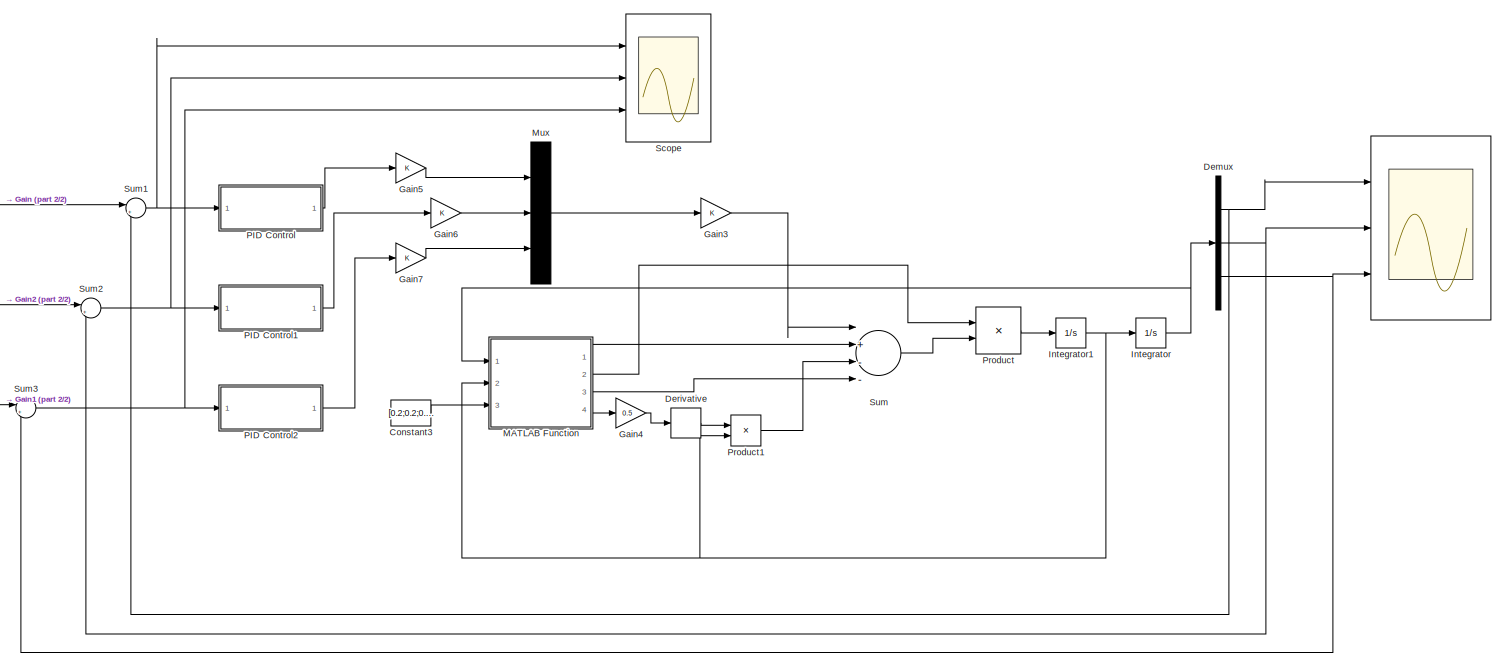
[diagram: root canvas - part 1/2, most of the canvas]
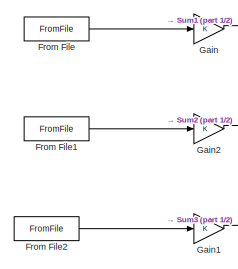
[diagram: root canvas - part 2/2, middle left region]
MODEL slx_bf147442f021
KIND model
CONFIG AbsTol = auto
CONFIG EnableMultiTasking = off
CONFIG FixedStep = auto
CONFIG MaxStep = auto
CONFIG MinStep = auto
CONFIG RelTol = 1e-3
CONFIG SampleTimeConstraint = Unconstrained
CONFIG Solver = VariableStepAuto
CONFIG SolverName = VariableStepAuto
CONFIG StartTime = 0.0
CONFIG StopTime = 40
BLOCK [Scope]  
  Floating = off
  NumInputPorts = 3
  Ports = [3]
  ScopeSpecificationString = Simulink.scopes.TimeScopeBlockCfg('CurrentConfiguration', extmgr.ConfigurationSet(extmgr.Configuration('Core','General UI',true),extmgr.Configuration('Core','Source UI',true),extmgr.Configuration('Sources','WiredSimulink',true,'DataLogging',true,'DataLoggingVariableName','Theta','DataLoggingSaveFormat','StructureWithTime'),extmgr.Configuration('Visuals','Time Domain',true,'SerializedDisplays',{str...<+2786ch>
BLOCK [Constant] Constant3
  Value = [0.2;0.2;0.2]*20
BLOCK [Demux] Demux
  DisplayOption = bar
  Outputs = 3
  Ports = [1, 3]
BLOCK [Derivative] Derivative
BLOCK [FromFile] From File
  FileName = The1Data1.mat
  SampleTime = 0
BLOCK [FromFile] From File1
  FileName = The2Data1.mat
  SampleTime = 0
BLOCK [FromFile] From File2
  FileName = The3Data1.mat
  SampleTime = 0
BLOCK [Gain] Gain
  OutDataTypeStr = Inherit: Inherit via internal rule
  ParamDataTypeStr = Inherit: Inherit via internal rule
  SaturateOnIntegerOverflow = off
BLOCK [Gain] Gain1
  OutDataTypeStr = Inherit: Inherit via internal rule
  ParamDataTypeStr = Inherit: Inherit via internal rule
  SaturateOnIntegerOverflow = off
BLOCK [Gain] Gain2
  OutDataTypeStr = Inherit: Inherit via internal rule
  ParamDataTypeStr = Inherit: Inherit via internal rule
  SaturateOnIntegerOverflow = off
BLOCK [Gain] Gain3
  OutDataTypeStr = Inherit: Inherit via internal rule
  ParamDataTypeStr = Inherit: Inherit via internal rule
  SaturateOnIntegerOverflow = off
BLOCK [Gain] Gain4
  Gain = 0.5
  OutDataTypeStr = Inherit: Inherit via internal rule
  ParamDataTypeStr = Inherit: Inherit via internal rule
  SaturateOnIntegerOverflow = off
BLOCK [Gain] Gain5
  OutDataTypeStr = Inherit: Inherit via internal rule
  ParamDataTypeStr = Inherit: Inherit via internal rule
  SaturateOnIntegerOverflow = off
BLOCK [Gain] Gain6
  OutDataTypeStr = Inherit: Inherit via internal rule
  ParamDataTypeStr = Inherit: Inherit via internal rule
  SaturateOnIntegerOverflow = off
BLOCK [Gain] Gain7
  OutDataTypeStr = Inherit: Inherit via internal rule
  ParamDataTypeStr = Inherit: Inherit via internal rule
  SaturateOnIntegerOverflow = off
BLOCK [Integrator] Integrator
  InitialCondition = [0;0;0]
  Ports = [1, 1]
BLOCK [Integrator] Integrator1
  InitialCondition = [0;0;0]
  Ports = [1, 1]
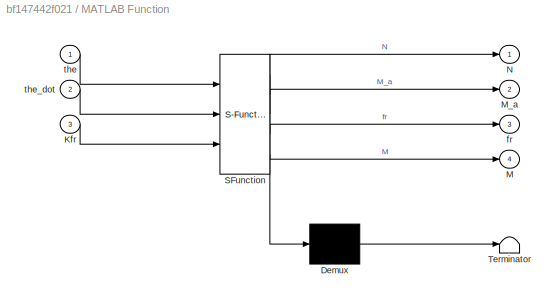
BLOCK [SubSystem] MATLAB Function
  ErrorFcn = Stateflow.Translate.translate
  PermitHierarchicalResolution = ExplicitOnly
  Ports = [3, 4]
  RequestExecContextInheritance = off
  SFBlockType = MATLAB Function
  TreatAsAtomicUnit = on
BLOCK [Demux] MATLAB Function/ Demux 
  Outputs = 1
  Ports = [1, 1]
BLOCK [S-Function] MATLAB Function/ SFunction 
  EnableBusSupport = on
  FunctionName = sf_sfun
  PortCounts = [3 5]
  Ports = [3, 5]
  SFcnIsStateOwnerBlock = off
  SFunctionDeploymentMode = off
  Tag = Stateflow S-Function DrwDynamics 2
BLOCK [Terminator] MATLAB Function/ Terminator 
BLOCK [Inport] MATLAB Function/Kfr
  IconDisplay = Port number
  Port = 3
BLOCK [Outport] MATLAB Function/M
  IconDisplay = Port number
  Port = 4
BLOCK [Outport] MATLAB Function/M_a
  IconDisplay = Port number
  Port = 2
BLOCK [Outport] MATLAB Function/N
  IconDisplay = Port number
BLOCK [Outport] MATLAB Function/fr
  IconDisplay = Port number
  Port = 3
BLOCK [Inport] MATLAB Function/the
  IconDisplay = Port number
BLOCK [Inport] MATLAB Function/the_dot
  IconDisplay = Port number
  Port = 2
BLOCK [Mux] Mux
  DisplayOption = bar
  Inputs = 3
  Ports = [3, 1]
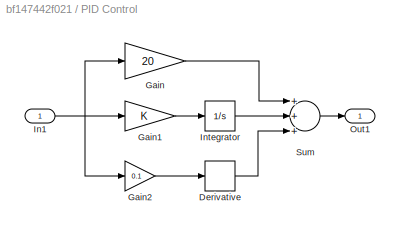
BLOCK [SubSystem] PID Control
  Ports = [1, 1]
  RequestExecContextInheritance = off
BLOCK [Derivative] PID Control/Derivative
BLOCK [Gain] PID Control/Gain
  Gain = 20
  OutDataTypeStr = Inherit: Inherit via internal rule
  ParamDataTypeStr = Inherit: Inherit via internal rule
  SaturateOnIntegerOverflow = off
BLOCK [Gain] PID Control/Gain1
  OutDataTypeStr = Inherit: Inherit via internal rule
  ParamDataTypeStr = Inherit: Inherit via internal rule
  SaturateOnIntegerOverflow = off
BLOCK [Gain] PID Control/Gain2
  Gain = 0.1
  OutDataTypeStr = Inherit: Inherit via internal rule
  ParamDataTypeStr = Inherit: Inherit via internal rule
  SaturateOnIntegerOverflow = off
BLOCK [Inport] PID Control/In1
  IconDisplay = Port number
BLOCK [Integrator] PID Control/Integrator
  Ports = [1, 1]
BLOCK [Outport] PID Control/Out1
  IconDisplay = Port number
BLOCK [Sum] PID Control/Sum
  InputSameDT = off
  Inputs = +++
  OutDataTypeStr = Inherit: Inherit via internal rule
  Ports = [3, 1]
  SaturateOnIntegerOverflow = off
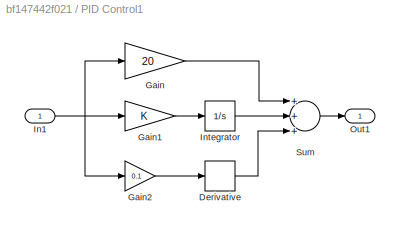
BLOCK [SubSystem] PID Control1
  Ports = [1, 1]
  RequestExecContextInheritance = off
BLOCK [Derivative] PID Control1/Derivative
BLOCK [Gain] PID Control1/Gain
  Gain = 20
  OutDataTypeStr = Inherit: Inherit via internal rule
  ParamDataTypeStr = Inherit: Inherit via internal rule
  SaturateOnIntegerOverflow = off
BLOCK [Gain] PID Control1/Gain1
  OutDataTypeStr = Inherit: Inherit via internal rule
  ParamDataTypeStr = Inherit: Inherit via internal rule
  SaturateOnIntegerOverflow = off
BLOCK [Gain] PID Control1/Gain2
  Gain = 0.1
  OutDataTypeStr = Inherit: Inherit via internal rule
  ParamDataTypeStr = Inherit: Inherit via internal rule
  SaturateOnIntegerOverflow = off
BLOCK [Inport] PID Control1/In1
  IconDisplay = Port number
BLOCK [Integrator] PID Control1/Integrator
  Ports = [1, 1]
BLOCK [Outport] PID Control1/Out1
  IconDisplay = Port number
BLOCK [Sum] PID Control1/Sum
  InputSameDT = off
  Inputs = +++
  OutDataTypeStr = Inherit: Inherit via internal rule
  Ports = [3, 1]
  SaturateOnIntegerOverflow = off
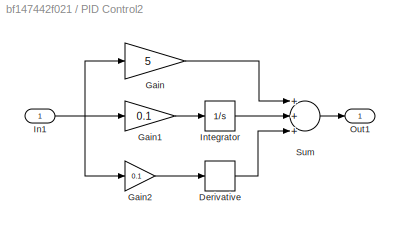
BLOCK [SubSystem] PID Control2
  Ports = [1, 1]
  RequestExecContextInheritance = off
BLOCK [Derivative] PID Control2/Derivative
BLOCK [Gain] PID Control2/Gain
  Gain = 5
  OutDataTypeStr = Inherit: Inherit via internal rule
  ParamDataTypeStr = Inherit: Inherit via internal rule
  SaturateOnIntegerOverflow = off
BLOCK [Gain] PID Control2/Gain1
  Gain = 0.1
  OutDataTypeStr = Inherit: Inherit via internal rule
  ParamDataTypeStr = Inherit: Inherit via internal rule
  SaturateOnIntegerOverflow = off
BLOCK [Gain] PID Control2/Gain2
  Gain = 0.1
  OutDataTypeStr = Inherit: Inherit via internal rule
  ParamDataTypeStr = Inherit: Inherit via internal rule
  SaturateOnIntegerOverflow = off
BLOCK [Inport] PID Control2/In1
  IconDisplay = Port number
BLOCK [Integrator] PID Control2/Integrator
  Ports = [1, 1]
BLOCK [Outport] PID Control2/Out1
  IconDisplay = Port number
BLOCK [Sum] PID Control2/Sum
  InputSameDT = off
  Inputs = +++
  OutDataTypeStr = Inherit: Inherit via internal rule
  Ports = [3, 1]
  SaturateOnIntegerOverflow = off
BLOCK [Product] Product
  InputSameDT = off
  Multiplication = Matrix(*)
  OutDataTypeStr = Inherit: Inherit via internal rule
  Ports = [2, 1]
  RndMeth = Floor
  SaturateOnIntegerOverflow = off
BLOCK [Product] Product1
  InputSameDT = off
  Multiplication = Matrix(*)
  OutDataTypeStr = Inherit: Inherit via internal rule
  Ports = [2, 1]
  RndMeth = Floor
  SaturateOnIntegerOverflow = off
BLOCK [Scope] Scope
  Floating = off
  NumInputPorts = 3
  Ports = [3]
  ScopeSpecificationString = Simulink.scopes.TimeScopeBlockCfg('CurrentConfiguration', extmgr.ConfigurationSet(extmgr.Configuration('Core','General UI',true),extmgr.Configuration('Core','Source UI',true),extmgr.Configuration('Sources','WiredSimulink',true),extmgr.Configuration('Visuals','Time Domain',true,'SerializedDisplays',{struct('MinYLimReal','-0.07861','MaxYLimReal','0.5239','YLabelReal','','MinYLimMag','0.00000','MaxYL...<+2700ch>
BLOCK [Sum] Sum
  InputSameDT = off
  Inputs = |+---
  OutDataTypeStr = Inherit: Inherit via internal rule
  Ports = [4, 1]
  SaturateOnIntegerOverflow = off
BLOCK [Sum] Sum1
  IconShape = round
  InputSameDT = off
  Inputs = |+-
  OutDataTypeStr = Inherit: Inherit via internal rule
  Ports = [2, 1]
  SaturateOnIntegerOverflow = off
BLOCK [Sum] Sum2
  IconShape = round
  InputSameDT = off
  Inputs = |+-
  OutDataTypeStr = Inherit: Inherit via internal rule
  Ports = [2, 1]
  SaturateOnIntegerOverflow = off
BLOCK [Sum] Sum3
  IconShape = round
  InputSameDT = off
  Inputs = |+-
  OutDataTypeStr = Inherit: Inherit via internal rule
  Ports = [2, 1]
  SaturateOnIntegerOverflow = off
LINE Constant3:1 -> MATLAB Function:3
NET Demux:1 ->  :1, Sum1:2
NET Demux:2 ->  :2, Sum2:2
NET Demux:3 ->  :3, Sum3:2
LINE Derivative:1 -> Product1:1
LINE From File1:1 -> Gain2:1
LINE From File2:1 -> Gain1:1
LINE From File:1 -> Gain:1
LINE Gain1:1 -> Sum3:1
LINE Gain2:1 -> Sum2:1
LINE Gain3:1 -> Sum:1
LINE Gain4:1 -> Derivative:1
LINE Gain5:1 -> Mux:1
LINE Gain6:1 -> Mux:2
LINE Gain7:1 -> Mux:3
LINE Gain:1 -> Sum1:1
NET Integrator1:1 -> Integrator:1, MATLAB Function:2, Product1:2
NET Integrator:1 -> Demux:1, MATLAB Function:1
LINE MATLAB Function:1 -> Sum:2
LINE MATLAB Function:2 -> Product:1
LINE MATLAB Function:3 -> Sum:4
LINE MATLAB Function:4 -> Gain4:1
LINE Mux:1 -> Gain3:1
LINE PID Control/Derivative:1 -> PID Control/Sum:3
LINE PID Control/Gain1:1 -> PID Control/Integrator:1
LINE PID Control/Gain2:1 -> PID Control/Derivative:1
LINE PID Control/Gain:1 -> PID Control/Sum:1
NET PID Control/In1:1 -> PID Control/Gain1:1, PID Control/Gain2:1, PID Control/Gain:1
LINE PID Control/Integrator:1 -> PID Control/Sum:2
LINE PID Control/Sum:1 -> PID Control/Out1:1
LINE PID Control1/Derivative:1 -> PID Control1/Sum:3
LINE PID Control1/Gain1:1 -> PID Control1/Integrator:1
LINE PID Control1/Gain2:1 -> PID Control1/Derivative:1
LINE PID Control1/Gain:1 -> PID Control1/Sum:1
NET PID Control1/In1:1 -> PID Control1/Gain1:1, PID Control1/Gain2:1, PID Control1/Gain:1
LINE PID Control1/Integrator:1 -> PID Control1/Sum:2
LINE PID Control1/Sum:1 -> PID Control1/Out1:1
LINE PID Control1:1 -> Gain6:1
LINE PID Control2/Derivative:1 -> PID Control2/Sum:3
LINE PID Control2/Gain1:1 -> PID Control2/Integrator:1
LINE PID Control2/Gain2:1 -> PID Control2/Derivative:1
LINE PID Control2/Gain:1 -> PID Control2/Sum:1
NET PID Control2/In1:1 -> PID Control2/Gain1:1, PID Control2/Gain2:1, PID Control2/Gain:1
LINE PID Control2/Integrator:1 -> PID Control2/Sum:2
LINE PID Control2/Sum:1 -> PID Control2/Out1:1
LINE PID Control2:1 -> Gain7:1
LINE PID Control:1 -> Gain5:1
LINE Product1:1 -> Sum:3
LINE Product:1 -> Integrator1:1
NET Sum1:1 -> PID Control:1, Scope:1
NET Sum2:1 -> PID Control1:1, Scope:2
NET Sum3:1 -> PID Control2:1, Scope:3
LINE Sum:1 -> Product:2
note: NET lines group one-source signal fan-out (src -> all destinations, sorted); 1:1 wires keep LINE
CHART MATLAB Function states=1 transitions=1
  STATE_LABEL 'eML_blk_kernel()'
  STATE_LABEL 'SCRIPT:\nfunction [N,M_a,fr,M] = fcn(the,the_dot,Kfr)\nthe1=the(1); the2=the(2); the3=the(3);\nL1 = 0.2; L2 = 0.5 ; L3= 0.5; %Link length\nm1 = 2 ; m2 = 0.3 ; m3 =0.1 ; %Link mass\n%clc\n%clear all;\n%syms m1 m2 m3 L2 L3 the1 the2 the3 L1 the1_dot the2_dot the3_dot ;\n%the_dot = [the1_dot; the2_dot;the3_dot];\n%%%%%%%%%%%%%%%%%%%%%%%%%%%%%%%%%%%%%\n\n%TINH JACOBIAN CHO DIEM m1\n%P_0_m1 = [ 0; 0; L1];\n\n%DAO HA...<+3608ch>'
